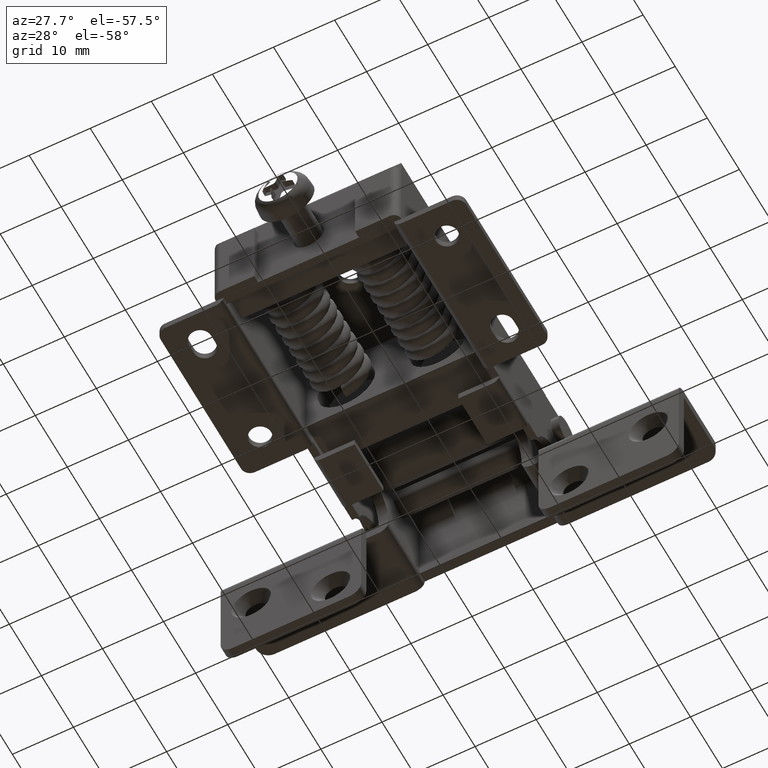
[diagram: clean part render]
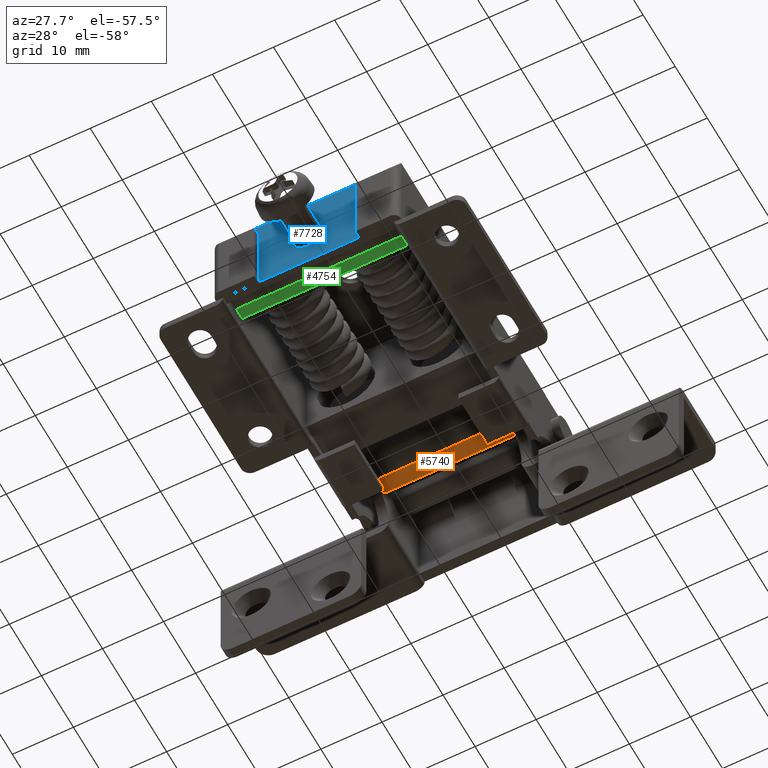
[diagram: same view with three faces highlighted in distinct colors, each labeled with its STEP entity id]
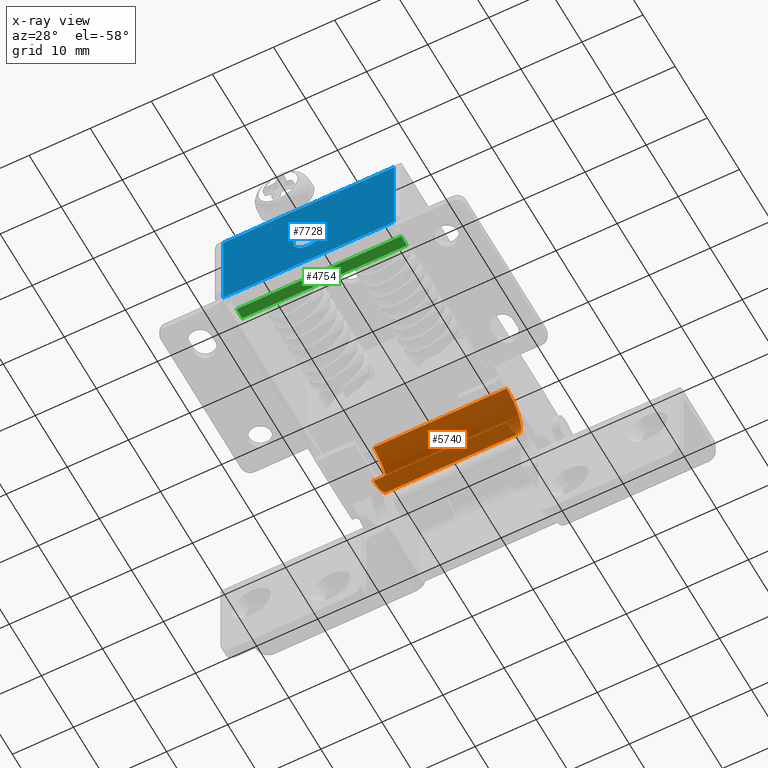
[diagram: x-ray of the same camera — body ghosted, the three highlighted faces saturated]
A machine part, auxiliary view with three faces highlighted in distinct colors.
The next image is the same camera in x-ray (body ghosted, the three faces saturated) — at least one of them is partly hidden behind the body in this view.
Their STEP definitions:

[orange] entity #5740 — the highlighted cylindrical surface (edge-blend (fillet) strip) has radius 4.5 mm, axis along (-1, 0, 0).
#83 = VERTEX_POINT ( 'NONE', #3801 ) ;
#2888 = EDGE_CURVE ( 'NONE', #8382, #83, #3937, .T. ) ;
#2914 = CARTESIAN_POINT ( 'NONE',  ( 0.0000000000000000000, 0.0000000000000000000, -9.500000000000000000 ) ) ;
#3187 = ORIENTED_EDGE ( 'NONE', *, *, #10852, .F. ) ;
#3267 = DIRECTION ( 'NONE',  ( -1.000000000000000000, 0.0000000000000000000, 0.0000000000000000000 ) ) ;
#3728 = DIRECTION ( 'NONE',  ( -1.000000000000000000, 0.0000000000000000000, 0.0000000000000000000 ) ) ;
#3765 = DIRECTION ( 'NONE',  ( 0.0000000000000000000, 0.0000000000000000000, 1.000000000000000000 ) ) ;
#3801 = CARTESIAN_POINT ( 'NONE',  ( 0.0000000000000000000, 5.510910596163087600E-016, -13.99999999999999800 ) ) ;
#3937 = LINE ( 'NONE', #7178, #10220 ) ;
#4222 = VERTEX_POINT ( 'NONE', #9438 ) ;
#4602 = AXIS2_PLACEMENT_3D ( 'NONE', #8388, #3267, #9245 ) ;
#4639 = CARTESIAN_POINT ( 'NONE',  ( 10.64999399999999800, 0.0000000000000000000, -9.500000000000000000 ) ) ;
#4895 = ORIENTED_EDGE ( 'NONE', *, *, #5976, .T. ) ;
#4945 = EDGE_CURVE ( 'NONE', #7422, #83, #9782, .T. ) ;
#5263 = LINE ( 'NONE', #9507, #9558 ) ;
#5441 = DIRECTION ( 'NONE',  ( -1.000000000000000000, 0.0000000000000000000, 0.0000000000000000000 ) ) ;
#5740 = ADVANCED_FACE ( 'NONE', ( #9925 ), #7379, .T. ) ;
#5976 = EDGE_CURVE ( 'NONE', #4222, #8382, #10042, .T. ) ;
#6208 = CARTESIAN_POINT ( 'NONE',  ( 0.0000000000000000000, 0.0000000000000000000, -5.000000000000000900 ) ) ;
#6366 = ORIENTED_EDGE ( 'NONE', *, *, #2888, .T. ) ;
#6943 = AXIS2_PLACEMENT_3D ( 'NONE', #4639, #5441, #10639 ) ;
#7178 = CARTESIAN_POINT ( 'NONE',  ( 10.64999399999999800, 5.510910596163083600E-016, -13.99999999999999500 ) ) ;
#7379 = CYLINDRICAL_SURFACE ( 'NONE', #6943, 4.499999999999995600 ) ;
#7422 = VERTEX_POINT ( 'NONE', #6208 ) ;
#8036 = DIRECTION ( 'NONE',  ( -1.000000000000000000, 0.0000000000000000000, 0.0000000000000000000 ) ) ;
#8382 = VERTEX_POINT ( 'NONE', #9568 ) ;
#8388 = CARTESIAN_POINT ( 'NONE',  ( 21.80000000000000100, 0.0000000000000000000, -9.500000000000000000 ) ) ;
#8902 = DIRECTION ( 'NONE',  ( -1.000000000000000000, 0.0000000000000000000, 0.0000000000000000000 ) ) ;
#9203 = ORIENTED_EDGE ( 'NONE', *, *, #4945, .F. ) ;
#9245 = DIRECTION ( 'NONE',  ( 0.0000000000000000000, 0.0000000000000000000, 1.000000000000000000 ) ) ;
#9438 = CARTESIAN_POINT ( 'NONE',  ( 21.80000000000000100, 0.0000000000000000000, -5.000000000000008000 ) ) ;
#9507 = CARTESIAN_POINT ( 'NONE',  ( 10.64999399999999800, 0.0000000000000000000, -5.000000000000004400 ) ) ;
#9558 = VECTOR ( 'NONE', #3728, 1000.000000000000000 ) ;
#9568 = CARTESIAN_POINT ( 'NONE',  ( 21.80000000000000100, 5.510910596163081700E-016, -13.99999999999999100 ) ) ;
#9782 = CIRCLE ( 'NONE', #9889, 4.499999999999999100 ) ;
#9889 = AXIS2_PLACEMENT_3D ( 'NONE', #2914, #8902, #3765 ) ;
#9925 = FACE_OUTER_BOUND ( 'NONE', #10810, .T. ) ;
#10042 = CIRCLE ( 'NONE', #4602, 4.499999999999992000 ) ;
#10220 = VECTOR ( 'NONE', #8036, 1000.000000000000000 ) ;
#10639 = DIRECTION ( 'NONE',  ( 0.0000000000000000000, 0.0000000000000000000, 1.000000000000000000 ) ) ;
#10810 = EDGE_LOOP ( 'NONE', ( #4895, #6366, #9203, #3187 ) ) ;
#10852 = EDGE_CURVE ( 'NONE', #4222, #7422, #5263, .T. ) ;

[blue] entity #7728 — the highlighted planar face has unit normal (0, -1, -0).
#225 = EDGE_CURVE ( 'NONE', #5885, #9311, #8293, .T. ) ;
#553 = AXIS2_PLACEMENT_3D ( 'NONE', #7188, #2099, #8052 ) ;
#743 = PLANE ( 'NONE',  #10415 ) ;
#1042 = DIRECTION ( 'NONE',  ( 0.0000000000000000000, 0.0000000000000000000, -1.000000000000000000 ) ) ;
#1349 = LINE ( 'NONE', #10796, #7334 ) ;
#1576 = LINE ( 'NONE', #2796, #8917 ) ;
#1983 = EDGE_CURVE ( 'NONE', #4871, #2369, #1576, .T. ) ;
#1990 = CARTESIAN_POINT ( 'NONE',  ( -13.98999999999979900, 9.799988000000000800, -49.00000000000000000 ) ) ;
#2099 = DIRECTION ( 'NONE',  ( 0.0000000000000000000, 0.0000000000000000000, -1.000000000000000000 ) ) ;
#2369 = VERTEX_POINT ( 'NONE', #10919 ) ;
#2545 = CARTESIAN_POINT ( 'NONE',  ( -984.8000030000000600, 9.799988000000000800, -49.00000000000000000 ) ) ;
#2588 = LINE ( 'NONE', #6625, #6846 ) ;
#2622 = EDGE_LOOP ( 'NONE', ( #9424, #9952 ) ) ;
#2676 = CARTESIAN_POINT ( 'NONE',  ( 0.0000000000000000000, 3.399963000000000100, -49.00000000000000000 ) ) ;
#2796 = CARTESIAN_POINT ( 'NONE',  ( -13.98999999999979900, 994.9999880000000300, -49.00000000000000000 ) ) ;
#2965 = CIRCLE ( 'NONE', #553, 2.500000000000000000 ) ;
#3164 = ORIENTED_EDGE ( 'NONE', *, *, #1983, .F. ) ;
#3201 = AXIS2_PLACEMENT_3D ( 'NONE', #2676, #4427, #4353 ) ;
#3513 = VERTEX_POINT ( 'NONE', #8445 ) ;
#3579 = EDGE_CURVE ( 'NONE', #4871, #3513, #10897, .T. ) ;
#3850 = ORIENTED_EDGE ( 'NONE', *, *, #3579, .T. ) ;
#4084 = ORIENTED_EDGE ( 'NONE', *, *, #7966, .T. ) ;
#4353 = DIRECTION ( 'NONE',  ( -1.000000000000000000, 0.0000000000000000000, 0.0000000000000000000 ) ) ;
#4416 = CARTESIAN_POINT ( 'NONE',  ( -984.8000030000000600, -5.000012000000070100, -49.00000000000000000 ) ) ;
#4427 = DIRECTION ( 'NONE',  ( 0.0000000000000000000, 0.0000000000000000000, -1.000000000000000000 ) ) ;
#4617 = ORIENTED_EDGE ( 'NONE', *, *, #5229, .F. ) ;
#4871 = VERTEX_POINT ( 'NONE', #1990 ) ;
#4963 = EDGE_CURVE ( 'NONE', #9311, #5885, #2965, .T. ) ;
#5229 = EDGE_CURVE ( 'NONE', #2369, #7363, #2588, .T. ) ;
#5283 = CARTESIAN_POINT ( 'NONE',  ( 13.99000000000020100, -5.000012000000110000, -49.00000000000000000 ) ) ;
#5717 = FACE_OUTER_BOUND ( 'NONE', #6840, .T. ) ;
#5885 = VERTEX_POINT ( 'NONE', #10830 ) ;
#6586 = VECTOR ( 'NONE', #8527, 1000.000000000000000 ) ;
#6625 = CARTESIAN_POINT ( 'NONE',  ( -984.8000030000000600, -5.000012000000070100, -49.00000000000000000 ) ) ;
#6840 = EDGE_LOOP ( 'NONE', ( #4084, #4617, #3164, #3850 ) ) ;
#6846 = VECTOR ( 'NONE', #10993, 1000.000000000000000 ) ;
#6988 = DIRECTION ( 'NONE',  ( -1.000000000000000000, 0.0000000000000000000, 0.0000000000000000000 ) ) ;
#7072 = CARTESIAN_POINT ( 'NONE',  ( 2.500000000000000000, 3.399963000000000500, -49.00000000000000000 ) ) ;
#7188 = CARTESIAN_POINT ( 'NONE',  ( 0.0000000000000000000, 3.399963000000000100, -49.00000000000000000 ) ) ;
#7202 = FACE_BOUND ( 'NONE', #2622, .T. ) ;
#7334 = VECTOR ( 'NONE', #7409, 1000.000000000000000 ) ;
#7363 = VERTEX_POINT ( 'NONE', #5283 ) ;
#7409 = DIRECTION ( 'NONE',  ( 0.0000000000000000000, -1.000000000000000000, 0.0000000000000000000 ) ) ;
#7728 = ADVANCED_FACE ( 'NONE', ( #7202, #5717 ), #743, .T. ) ;
#7966 = EDGE_CURVE ( 'NONE', #3513, #7363, #1349, .T. ) ;
#8052 = DIRECTION ( 'NONE',  ( -1.000000000000000000, 0.0000000000000000000, 0.0000000000000000000 ) ) ;
#8293 = CIRCLE ( 'NONE', #3201, 2.500000000000000000 ) ;
#8445 = CARTESIAN_POINT ( 'NONE',  ( 13.99000000000020100, 9.799988000000000800, -49.00000000000000000 ) ) ;
#8527 = DIRECTION ( 'NONE',  ( 1.000000000000000000, 0.0000000000000000000, 0.0000000000000000000 ) ) ;
#8917 = VECTOR ( 'NONE', #9630, 1000.000000000000000 ) ;
#9311 = VERTEX_POINT ( 'NONE', #7072 ) ;
#9424 = ORIENTED_EDGE ( 'NONE', *, *, #225, .F. ) ;
#9630 = DIRECTION ( 'NONE',  ( 0.0000000000000000000, -1.000000000000000000, 0.0000000000000000000 ) ) ;
#9952 = ORIENTED_EDGE ( 'NONE', *, *, #4963, .F. ) ;
#10415 = AXIS2_PLACEMENT_3D ( 'NONE', #4416, #1042, #6988 ) ;
#10796 = CARTESIAN_POINT ( 'NONE',  ( 13.99000000000020100, 994.9999880000000300, -49.00000000000000000 ) ) ;
#10830 = CARTESIAN_POINT ( 'NONE',  ( -2.500000000000000000, 3.399963000000000100, -49.00000000000000000 ) ) ;
#10897 = LINE ( 'NONE', #2545, #6586 ) ;
#10919 = CARTESIAN_POINT ( 'NONE',  ( -13.98999999999979900, -5.000012000000110000, -49.00000000000000000 ) ) ;
#10993 = DIRECTION ( 'NONE',  ( 1.000000000000000000, 0.0000000000000000000, 0.0000000000000000000 ) ) ;

[green] entity #4754 — the highlighted planar face has unit normal (0, 0, -1).
#41 = CARTESIAN_POINT ( 'NONE',  ( 13.50000000000000000, 8.799987999999999000, -44.00000000000000000 ) ) ;
#487 = VERTEX_POINT ( 'NONE', #1471 ) ;
#547 = DIRECTION ( 'NONE',  ( 1.000000000000000000, 0.0000000000000000000, 0.0000000000000000000 ) ) ;
#1123 = VERTEX_POINT ( 'NONE', #4273 ) ;
#1471 = CARTESIAN_POINT ( 'NONE',  ( 13.50000000000000000, 8.799987999999999000, -44.00000000000000000 ) ) ;
#1679 = LINE ( 'NONE', #6743, #7117 ) ;
#1755 = EDGE_CURVE ( 'NONE', #487, #3503, #9978, .T. ) ;
#1824 = ORIENTED_EDGE ( 'NONE', *, *, #10941, .T. ) ;
#2316 = CARTESIAN_POINT ( 'NONE',  ( 13.50000000000000000, 8.799987999999999000, -45.80000299999989700 ) ) ;
#2320 = EDGE_CURVE ( 'NONE', #3503, #1123, #3153, .T. ) ;
#2493 = LINE ( 'NONE', #10759, #9041 ) ;
#3153 = LINE ( 'NONE', #2316, #7692 ) ;
#3302 = DIRECTION ( 'NONE',  ( -0.0000000000000000000, 1.000000000000000000, 0.0000000000000000000 ) ) ;
#3360 = DIRECTION ( 'NONE',  ( 0.0000000000000000000, 0.0000000000000000000, 1.000000000000000000 ) ) ;
#3503 = VERTEX_POINT ( 'NONE', #10113 ) ;
#3529 = EDGE_CURVE ( 'NONE', #1123, #5645, #1679, .T. ) ;
#3543 = ORIENTED_EDGE ( 'NONE', *, *, #2320, .T. ) ;
#3585 = AXIS2_PLACEMENT_3D ( 'NONE', #7515, #3302, #9281 ) ;
#3683 = CARTESIAN_POINT ( 'NONE',  ( -13.50000000000000000, 8.799987999999999000, -44.00000000000000000 ) ) ;
#4273 = CARTESIAN_POINT ( 'NONE',  ( -13.50000000000000000, 8.799987999999999000, -45.80000299999989700 ) ) ;
#4754 = ADVANCED_FACE ( 'NONE', ( #6273 ), #8420, .T. ) ;
#4874 = DIRECTION ( 'NONE',  ( -1.000000000000000000, 0.0000000000000000000, 0.0000000000000000000 ) ) ;
#4999 = EDGE_LOOP ( 'NONE', ( #8213, #3543, #5325, #1824 ) ) ;
#5325 = ORIENTED_EDGE ( 'NONE', *, *, #3529, .T. ) ;
#5645 = VERTEX_POINT ( 'NONE', #3683 ) ;
#5911 = DIRECTION ( 'NONE',  ( 0.0000000000000000000, 0.0000000000000000000, -1.000000000000000000 ) ) ;
#5941 = VECTOR ( 'NONE', #5911, 1000.000000000000000 ) ;
#6273 = FACE_OUTER_BOUND ( 'NONE', #4999, .T. ) ;
#6743 = CARTESIAN_POINT ( 'NONE',  ( -13.50000000000000000, 8.799987999999999000, -45.80000299999989700 ) ) ;
#7117 = VECTOR ( 'NONE', #3360, 1000.000000000000000 ) ;
#7515 = CARTESIAN_POINT ( 'NONE',  ( 0.0000000000000000000, 8.799987999999999000, 0.0000000000000000000 ) ) ;
#7692 = VECTOR ( 'NONE', #4874, 1000.000000000000000 ) ;
#8213 = ORIENTED_EDGE ( 'NONE', *, *, #1755, .T. ) ;
#8420 = PLANE ( 'NONE',  #3585 ) ;
#9041 = VECTOR ( 'NONE', #547, 1000.000000000000000 ) ;
#9281 = DIRECTION ( 'NONE',  ( 1.000000000000000000, 0.0000000000000000000, 0.0000000000000000000 ) ) ;
#9978 = LINE ( 'NONE', #41, #5941 ) ;
#10113 = CARTESIAN_POINT ( 'NONE',  ( 13.50000000000000000, 8.799987999999999000, -45.80000299999989700 ) ) ;
#10759 = CARTESIAN_POINT ( 'NONE',  ( -13.50000000000000000, 8.799987999999999000, -44.00000000000000000 ) ) ;
#10941 = EDGE_CURVE ( 'NONE', #5645, #487, #2493, .T. ) ;